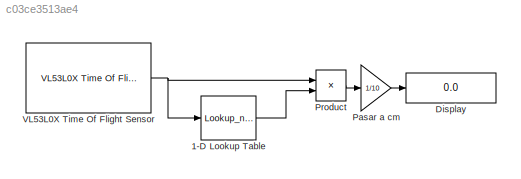
MODEL slx_c03ce3513ae4
KIND model
CONFIG AbsTol = auto
CONFIG EnableMultiTasking = on
CONFIG FixedStep = auto
CONFIG MaxStep = auto
CONFIG MinStep = auto
CONFIG RelTol = 1e-3
CONFIG SampleTimeConstraint = Unconstrained
CONFIG SolverName = FixedStepAuto
CONFIG StartTime = 0.0
CONFIG StopTime = inf
BLOCK [Lookup_n-D] 1-D Lookup Table
  BreakpointsForDimension1 = x
  ExtrapMethod = Clip
  InputPortMap = u0
  InternalRulePriority = Speed
  NumberOfTableDimensions = 1
  RndMeth = Simplest
  Table = K
BLOCK [Display] Display
  Decimation = 1
BLOCK [Gain] Pasar a cm
  Gain = 1/10
BLOCK [Product] Product
BLOCK [Reference] VL53L0X Time Of Flight Sensor  REF=arduinosensorlib/VL53L0X Time Of Flight Sensor
  SourceBlock = arduinosensorlib/VL53L0X Time Of Flight Sensor
  SourceType = Arduino VL53L0x
LINE 1-D Lookup Table:1 -> Product:2
LINE Pasar a cm:1 -> Display:1
LINE Product:1 -> Pasar a cm:1
NET VL53L0X Time Of Flight Sensor:1 -> 1-D Lookup Table:1, Product:1
note: NET lines group one-source signal fan-out (src -> all destinations, sorted); 1:1 wires keep LINE
